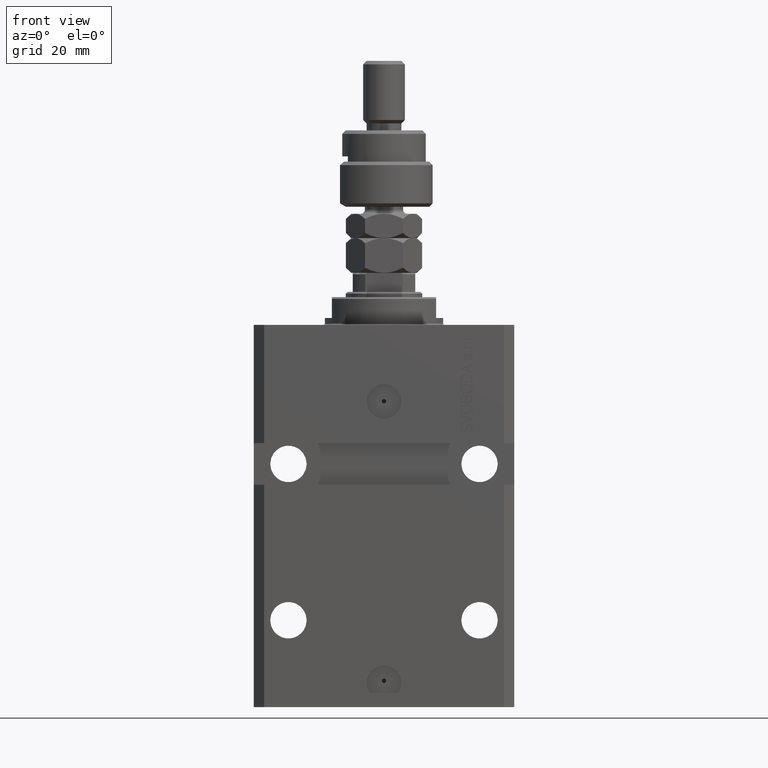
[diagram: clean part render]
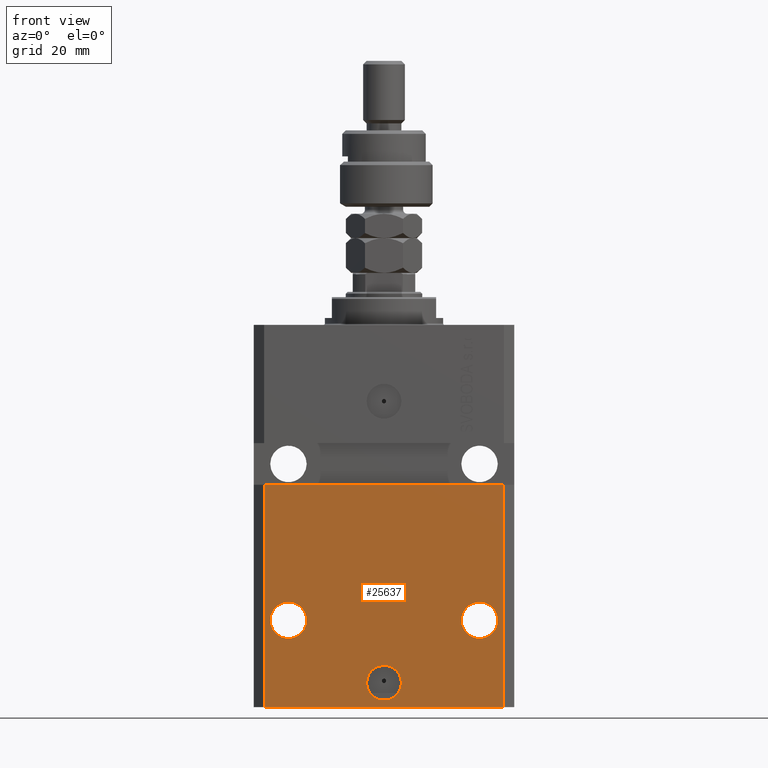
[diagram: same view with one face highlighted and labeled with its STEP entity id]
A machine part, front view. The second image highlights one B-rep face of the part: STEP entity #25637.
In plain terms, the highlighted planar face has unit normal (0, -1, 0).
Its self-contained STEP definition (entity closure, byte-faithful):
#1 = VERTEX_POINT ( 'NONE', #27588 ) ;
#258 = ORIENTED_EDGE ( 'NONE', *, *, #40116, .F. ) ;
#670 = DIRECTION ( 'NONE',  ( 0.000000000000000000, 0.000000000000000000, 1.000000000000000000 ) ) ;
#920 = LINE ( 'NONE', #31096, #25634 ) ;
#1003 = EDGE_CURVE ( 'NONE', #41743, #28703, #41677, .T. ) ;
#1724 = CARTESIAN_POINT ( 'NONE',  ( 0.000000000000000000, -27.49999999999999645, -103.0000000000000000 ) ) ;
#2378 = VERTEX_POINT ( 'NONE', #39563 ) ;
#3002 = VECTOR ( 'NONE', #9009, 1000.000000000000000 ) ;
#3936 = AXIS2_PLACEMENT_3D ( 'NONE', #42989, #8240, #16103 ) ;
#4493 = DIRECTION ( 'NONE',  ( 1.176083712526788232E-16, -1.000000000000000000, 0.000000000000000000 ) ) ;
#4871 = CARTESIAN_POINT ( 'NONE',  ( 0.000000000000000000, -27.49999999999999645, -103.0000000000000000 ) ) ;
#4886 = DIRECTION ( 'NONE',  ( 1.176083712526788232E-16, -1.000000000000000000, 0.000000000000000000 ) ) ;
#5266 = CARTESIAN_POINT ( 'NONE',  ( -32.75000000000000711, -27.50000000000000000, -84.99999999999998579 ) ) ;
#5969 = LINE ( 'NONE', #33111, #35971 ) ;
#6515 = DIRECTION ( 'NONE',  ( 1.176083712526788232E-16, -1.000000000000000000, 0.000000000000000000 ) ) ;
#6793 = EDGE_LOOP ( 'NONE', ( #23088, #24389 ) ) ;
#6848 = EDGE_CURVE ( 'NONE', #28703, #41743, #41735, .T. ) ;
#7584 = CIRCLE ( 'NONE', #11624, 5.249999999999994671 ) ;
#8240 = DIRECTION ( 'NONE',  ( 0.000000000000000000, -1.000000000000000000, 0.000000000000000000 ) ) ;
#8975 = FACE_OUTER_BOUND ( 'NONE', #35097, .T. ) ;
#9009 = DIRECTION ( 'NONE',  ( 1.000000000000000000, 0.000000000000000000, 0.000000000000000000 ) ) ;
#9450 = VERTEX_POINT ( 'NONE', #45160 ) ;
#10402 = EDGE_CURVE ( 'NONE', #1, #39572, #36193, .T. ) ;
#11624 = AXIS2_PLACEMENT_3D ( 'NONE', #14017, #33542, #29497 ) ;
#11710 = DIRECTION ( 'NONE',  ( 1.000000000000000000, 0.000000000000000000, 0.000000000000000000 ) ) ;
#12581 = CARTESIAN_POINT ( 'NONE',  ( -5.000000000000006217, -27.49999999999999645, -103.0000000000000000 ) ) ;
#12599 = DIRECTION ( 'NONE',  ( 1.000000000000000000, 0.000000000000000000, 0.000000000000000000 ) ) ;
#12679 = AXIS2_PLACEMENT_3D ( 'NONE', #24322, #20756, #24073 ) ;
#13692 = ORIENTED_EDGE ( 'NONE', *, *, #14519, .F. ) ;
#14017 = CARTESIAN_POINT ( 'NONE',  ( 27.50000000000001421, -27.49999999999999289, -84.99999999999998579 ) ) ;
#14519 = EDGE_CURVE ( 'NONE', #45817, #15506, #15547, .T. ) ;
#14837 = AXIS2_PLACEMENT_3D ( 'NONE', #47373, #4493, #12599 ) ;
#15292 = VECTOR ( 'NONE', #47009, 1000.000000000000000 ) ;
#15506 = VERTEX_POINT ( 'NONE', #28794 ) ;
#15547 = LINE ( 'NONE', #23417, #15292 ) ;
#16103 = DIRECTION ( 'NONE',  ( 0.000000000000000000, -0.000000000000000000, -1.000000000000000000 ) ) ;
#17380 = LINE ( 'NONE', #43766, #3002 ) ;
#17435 = AXIS2_PLACEMENT_3D ( 'NONE', #1724, #6515, #40253 ) ;
#17446 = EDGE_CURVE ( 'NONE', #29032, #45817, #920, .T. ) ;
#17757 = ORIENTED_EDGE ( 'NONE', *, *, #44210, .T. ) ;
#18041 = ORIENTED_EDGE ( 'NONE', *, *, #10402, .F. ) ;
#19613 = ORIENTED_EDGE ( 'NONE', *, *, #38586, .F. ) ;
#20077 = ORIENTED_EDGE ( 'NONE', *, *, #41009, .T. ) ;
#20756 = DIRECTION ( 'NONE',  ( 1.176083712526788232E-16, -1.000000000000000000, 0.000000000000000000 ) ) ;
#21213 = EDGE_CURVE ( 'NONE', #39572, #1, #43460, .T. ) ;
#22369 = CARTESIAN_POINT ( 'NONE',  ( 5.000000000000006217, -27.49999999999999645, -103.0000000000000000 ) ) ;
#23088 = ORIENTED_EDGE ( 'NONE', *, *, #6848, .F. ) ;
#23417 = CARTESIAN_POINT ( 'NONE',  ( -37.50000000000000000, -27.50000000000000000, -46.00000000000000000 ) ) ;
#24073 = DIRECTION ( 'NONE',  ( -1.000000000000000000, 0.000000000000000000, 0.000000000000000000 ) ) ;
#24322 = CARTESIAN_POINT ( 'NONE',  ( -27.50000000000001421, -27.50000000000000000, -84.99999999999998579 ) ) ;
#24389 = ORIENTED_EDGE ( 'NONE', *, *, #1003, .F. ) ;
#25634 = VECTOR ( 'NONE', #670, 1000.000000000000000 ) ;
#25637 = ADVANCED_FACE ( 'NONE', ( #28277, #43732, #31319, #8975 ), #27528, .T. ) ;
#26284 = AXIS2_PLACEMENT_3D ( 'NONE', #4871, #46482, #11710 ) ;
#26363 = CARTESIAN_POINT ( 'NONE',  ( 32.75000000000000711, -27.49999999999999289, -84.99999999999998579 ) ) ;
#26469 = AXIS2_PLACEMENT_3D ( 'NONE', #32520, #4886, #48016 ) ;
#26750 = EDGE_LOOP ( 'NONE', ( #18041, #28200 ) ) ;
#27528 = PLANE ( 'NONE',  #3936 ) ;
#27588 = CARTESIAN_POINT ( 'NONE',  ( -22.25000000000002132, -27.50000000000000000, -84.99999999999998579 ) ) ;
#28200 = ORIENTED_EDGE ( 'NONE', *, *, #21213, .F. ) ;
#28277 = FACE_BOUND ( 'NONE', #6793, .T. ) ;
#28703 = VERTEX_POINT ( 'NONE', #22369 ) ;
#28794 = CARTESIAN_POINT ( 'NONE',  ( 34.49999999999999289, -27.49999999999999289, -46.00000000000000711 ) ) ;
#29032 = VERTEX_POINT ( 'NONE', #42572 ) ;
#29497 = DIRECTION ( 'NONE',  ( 1.000000000000000000, 0.000000000000000000, 0.000000000000000000 ) ) ;
#31004 = CIRCLE ( 'NONE', #14837, 5.249999999999994671 ) ;
#31096 = CARTESIAN_POINT ( 'NONE',  ( -34.49999999999998579, -27.49999999999999645, -110.0000000000000000 ) ) ;
#31319 = FACE_BOUND ( 'NONE', #26750, .T. ) ;
#32520 = CARTESIAN_POINT ( 'NONE',  ( -27.50000000000001421, -27.50000000000000000, -84.99999999999998579 ) ) ;
#33023 = EDGE_LOOP ( 'NONE', ( #19613, #258 ) ) ;
#33111 = CARTESIAN_POINT ( 'NONE',  ( 34.49999999999999289, -27.49999999999999645, -110.0000000000000000 ) ) ;
#33361 = DIRECTION ( 'NONE',  ( 0.000000000000000000, 0.000000000000000000, 1.000000000000000000 ) ) ;
#33542 = DIRECTION ( 'NONE',  ( 1.176083712526788232E-16, -1.000000000000000000, 0.000000000000000000 ) ) ;
#35097 = EDGE_LOOP ( 'NONE', ( #13692, #44717, #17757, #20077 ) ) ;
#35971 = VECTOR ( 'NONE', #33361, 1000.000000000000000 ) ;
#36193 = CIRCLE ( 'NONE', #12679, 5.249999999999994671 ) ;
#38586 = EDGE_CURVE ( 'NONE', #42801, #2378, #31004, .T. ) ;
#39563 = CARTESIAN_POINT ( 'NONE',  ( 22.25000000000002132, -27.49999999999999289, -84.99999999999998579 ) ) ;
#39572 = VERTEX_POINT ( 'NONE', #5266 ) ;
#40116 = EDGE_CURVE ( 'NONE', #2378, #42801, #7584, .T. ) ;
#40253 = DIRECTION ( 'NONE',  ( 1.000000000000000000, 0.000000000000000000, 0.000000000000000000 ) ) ;
#41009 = EDGE_CURVE ( 'NONE', #9450, #15506, #5969, .T. ) ;
#41677 = CIRCLE ( 'NONE', #26284, 5.000000000000006217 ) ;
#41735 = CIRCLE ( 'NONE', #17435, 5.000000000000006217 ) ;
#41743 = VERTEX_POINT ( 'NONE', #12581 ) ;
#42572 = CARTESIAN_POINT ( 'NONE',  ( -34.49999999999998579, -27.49999999999999645, -110.0000000000000000 ) ) ;
#42801 = VERTEX_POINT ( 'NONE', #26363 ) ;
#42989 = CARTESIAN_POINT ( 'NONE',  ( -34.49999999999998579, -27.49999999999999645, -110.0000000000000000 ) ) ;
#43460 = CIRCLE ( 'NONE', #26469, 5.249999999999994671 ) ;
#43732 = FACE_BOUND ( 'NONE', #33023, .T. ) ;
#43766 = CARTESIAN_POINT ( 'NONE',  ( -34.49999999999998579, -27.49999999999999645, -110.0000000000000000 ) ) ;
#44210 = EDGE_CURVE ( 'NONE', #29032, #9450, #17380, .T. ) ;
#44717 = ORIENTED_EDGE ( 'NONE', *, *, #17446, .F. ) ;
#44863 = CARTESIAN_POINT ( 'NONE',  ( -34.49999999999998579, -27.50000000000000000, -46.00000000000000000 ) ) ;
#45160 = CARTESIAN_POINT ( 'NONE',  ( 34.49999999999999289, -27.49999999999999645, -110.0000000000000000 ) ) ;
#45817 = VERTEX_POINT ( 'NONE', #44863 ) ;
#46482 = DIRECTION ( 'NONE',  ( 1.176083712526788232E-16, -1.000000000000000000, 0.000000000000000000 ) ) ;
#47009 = DIRECTION ( 'NONE',  ( 1.000000000000000000, 9.251858538542972814E-17, -9.251858538542972814E-17 ) ) ;
#47373 = CARTESIAN_POINT ( 'NONE',  ( 27.50000000000001421, -27.49999999999999289, -84.99999999999998579 ) ) ;
#48016 = DIRECTION ( 'NONE',  ( -1.000000000000000000, 0.000000000000000000, 0.000000000000000000 ) ) ;